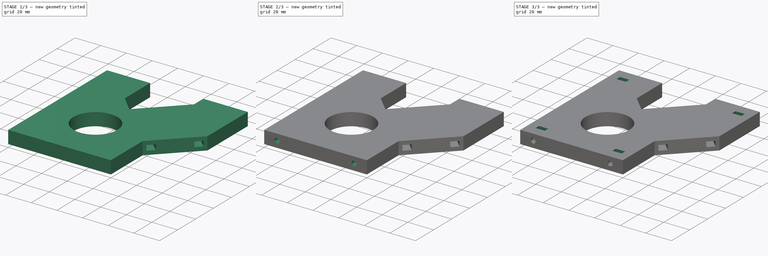
[diagram: build sequence overview — one tinted view per stage of 3, left to right]
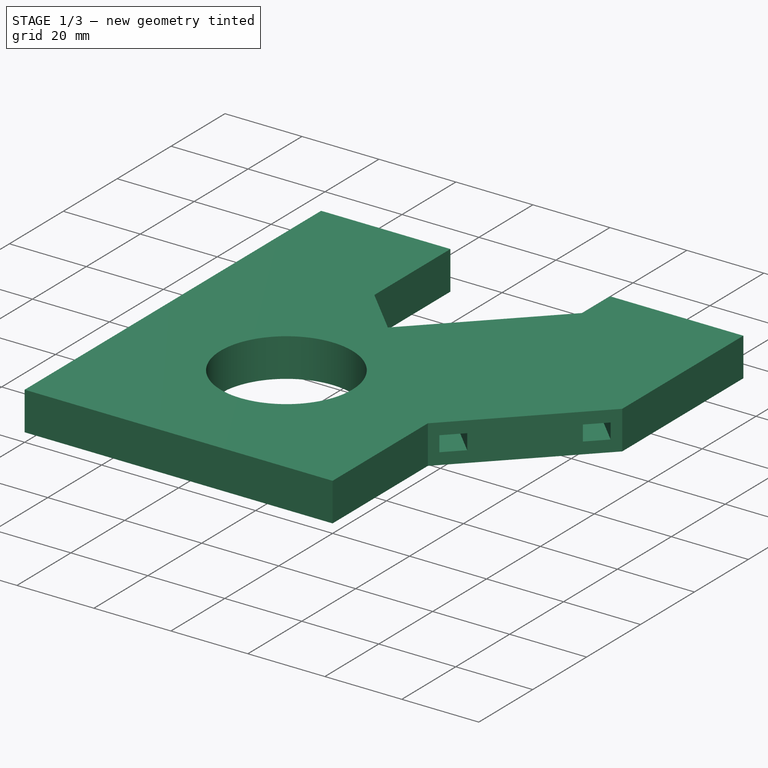
[diagram: stage 1 of 3 — iso view after this stage's code; geometry added in this stage tinted green]
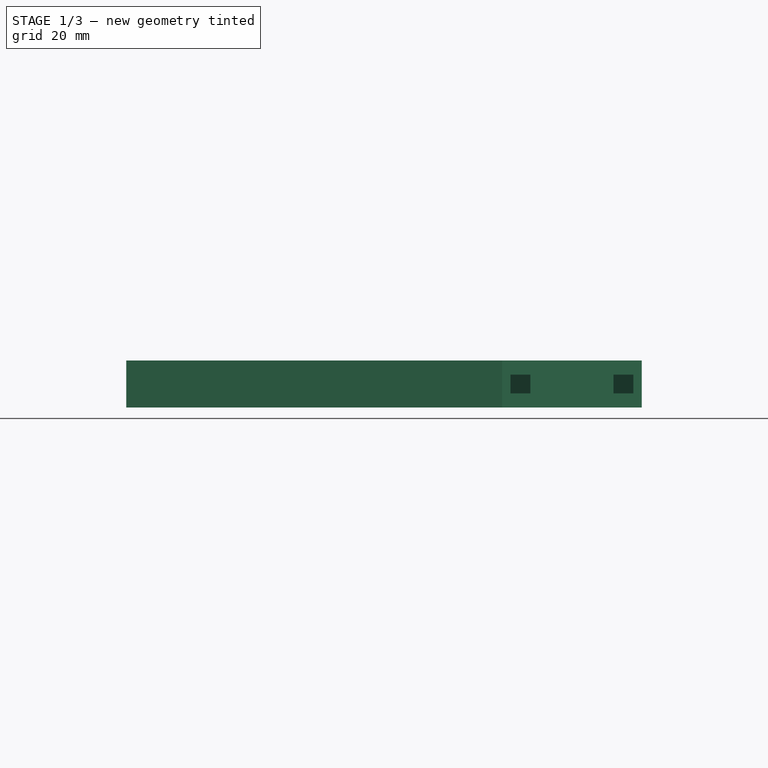
[diagram: stage 1 of 3 — front view after this stage's code; geometry added in this stage tinted green]
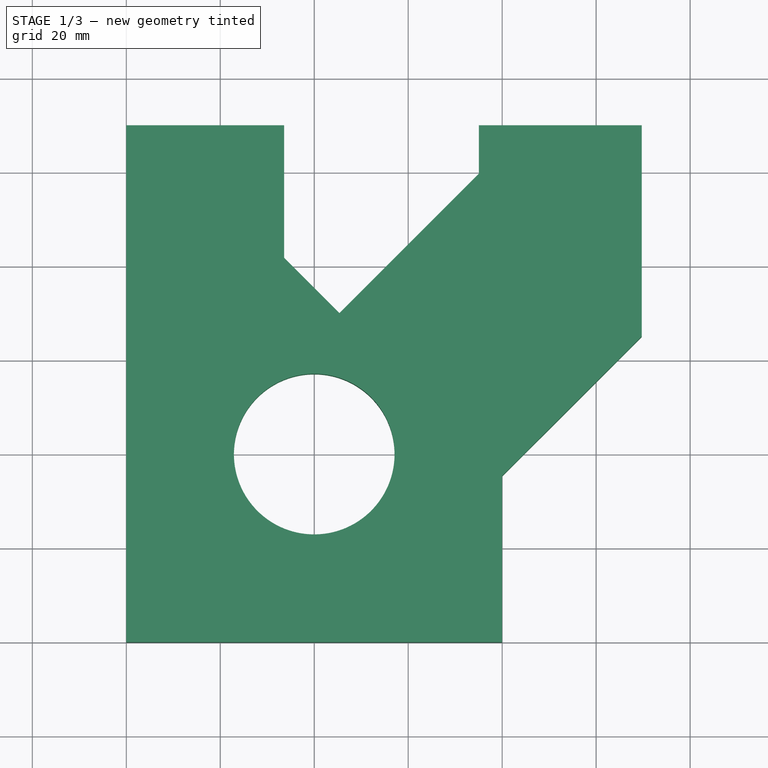
[diagram: stage 1 of 3 — top view after this stage's code; geometry added in this stage tinted green]
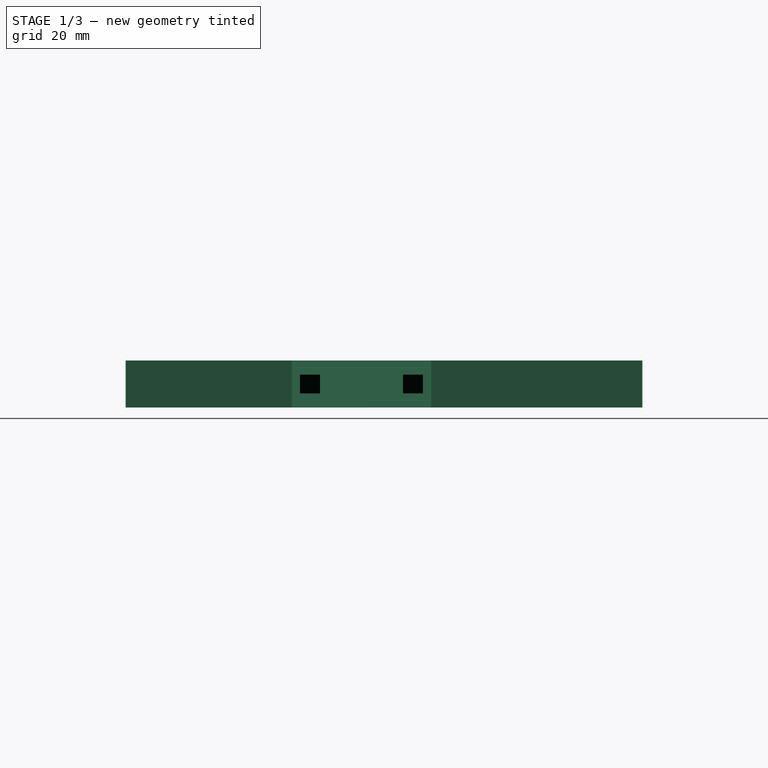
[diagram: stage 1 of 3 — right view after this stage's code; geometry added in this stage tinted green]
FCSTD DOCUMENT  (FreeCAD 0.14R3700 (Git))
Label: axis_side
License: CC-BY 3.0
LicenseURL: http://creativecommons.org/licenses/by/3.0/
objects: Sketcher::SketchObject×6, PartDesign::Pocket×5, PartDesign::Pad×1
note: 18 computed .brp shape members not serialized (recipe doc carries the construction recipe); baked Part::Feature solids carry a one-line shape summary decoded from their .brp

FEATURE [Sketcher::SketchObject] Sketch003
  sketch-geometry (24):
    g0: Circle CenterX=0 CenterY=0 CenterZ=0 NormalX=0 NormalY=0 NormalZ=1 Radius=17.1
    g1: LineSegment StartX=-40 StartY=-40 StartZ=0 EndX=-40 EndY=30 EndZ=0
    g2: LineSegment [constr] StartX=-40 StartY=30 StartZ=0 EndX=5.35534 EndY=30 EndZ=0
    g3: LineSegment StartX=5.35534 StartY=30 StartZ=0 EndX=35.0538 EndY=59.6985 EndZ=0
    g4: LineSegment [constr] StartX=35.0538 StartY=59.6985 StartZ=0 EndX=69.6985 EndY=25.0538 EndZ=0
    g5: LineSegment StartX=69.6985 StartY=25.0538 StartZ=0 EndX=40 EndY=-4.64466 EndZ=0
    g6: LineSegment StartX=40 StartY=-4.64466 StartZ=0 EndX=40 EndY=-40 EndZ=0
    g7: LineSegment StartX=40 StartY=-40 StartZ=0 EndX=-40 EndY=-40 EndZ=0
    g8: LineSegment [constr] StartX=75.3553 StartY=-40 StartZ=0 EndX=105.054 EndY=-10.3015 EndZ=0
    g9: LineSegment [constr] StartX=40 StartY=-4.64466 StartZ=0 EndX=75.3553 EndY=-40 EndZ=0
    g10: LineSegment [constr] StartX=69.6985 StartY=25.0538 StartZ=0 EndX=105.054 EndY=-10.3015 EndZ=0
    g11: Circle [constr] CenterX=0 CenterY=0 CenterZ=0 NormalX=0 NormalY=0 NormalZ=1 Radius=37
    g12: Circle [constr] CenterX=0 CenterY=0 CenterZ=0 NormalX=0 NormalY=0 NormalZ=1 Radius=39.2
    g13: LineSegment [constr] StartX=47.7782 StartY=3.13351 StartZ=0 EndX=8.32056 EndY=42.5911 EndZ=0
    g14: LineSegment [constr] StartX=8.32056 StartY=42.5911 StartZ=0 EndX=22.4627 EndY=56.7333 EndZ=0
    g15: LineSegment [constr] StartX=22.4627 StartY=56.7333 StartZ=0 EndX=61.9203 EndY=17.2756 EndZ=0
    g16: LineSegment [constr] StartX=5.35534 StartY=30 StartZ=0 EndX=40 EndY=-4.64466 EndZ=0
    g17: LineSegment StartX=-40 StartY=30 StartZ=0 EndX=-40 EndY=70 EndZ=0
    g18: LineSegment StartX=-40 StartY=70 StartZ=0 EndX=-6.40346 EndY=70 EndZ=0
    g19: LineSegment StartX=35.0538 StartY=59.6985 StartZ=0 EndX=35.0538 EndY=70 EndZ=0
    g20: LineSegment StartX=35.0538 StartY=70 StartZ=0 EndX=69.6985 EndY=70 EndZ=0
    g21: LineSegment StartX=69.6985 StartY=70 StartZ=0 EndX=69.6985 EndY=25.0538 EndZ=0
    g22: LineSegment StartX=-6.40346 StartY=70 StartZ=0 EndX=-6.40346 EndY=41.7588 EndZ=0
    g23: LineSegment StartX=-6.40346 StartY=41.7588 StartZ=0 EndX=5.35534 EndY=30 EndZ=0
  constraints (63):
    c: Coincident(g0,g-1)
    c: Vertical(g1)
    c: Coincident(g1,g2)
    c: Horizontal(g2)
    c: Coincident(g2,g3)
    c: Coincident(g3,g4)
    c: Coincident(g4,g5)
    c: Coincident(g5,g6)
    c: Vertical(g6)
    c: Coincident(g6,g7)
    c: Coincident(g7,g1)
    c: Horizontal(g7)
    c: Perpendicular(g3,g4)
    c: Perpendicular(g4,g5)
    c: Distance(g5) = 42
    c: Coincident(g9,g8)
    c: Coincident(g8,g10)
    c: Perpendicular(g10,g8)
    c: Perpendicular(g9,g8)
    c: Tangent(g10,g4)
    c: Coincident(g9,g5)
    c: DistanceY(g-1,g1) = -40
    c: Distance(g9) = 50
    c: DistanceY(g6,g8) = 0
    c: Radius(g0) = 17.1
    c: Coincident(g11,g-1)
    c: Radius(g11) = 37
    c: Coincident(g12,g-1)
    c: Radius(g12) = 39.2
    c: PointOnObject(g13,g5)
    c: Coincident(g13,g14)
    c: Coincident(g14,g15)
    c: PointOnObject(g15,g5)
    c: Perpendicular(g13,g5)
    c: Perpendicular(g14,g13)
    c: Perpendicular(g14,g15)
    c: Distance(g14) = 20
    c: Distance(g15,g4) = 11
    c: DistanceX(g-2,g5) = 40
    c: Coincident(g16,g2)
    c: Coincident(g16,g5)
    c: Perpendicular(g16,g3)
    c: Angle(g3,g2) = 2.35619
    c: DistanceY(g-1,g1) = 30
    c: DistanceX(g-2,g1) = -40
    c: Coincident(g1,g17)
    c: Coincident(g17,g18)
    c: Vertical(g17)
    c: Horizontal(g18)
    c: Coincident(g3,g19)
    c: Coincident(g19,g20)
    c: Horizontal(g20)
    c: Coincident(g20,g21)
    c: Coincident(g21,g4)
    c: Vertical(g21)
    c: Vertical(g19)
    c: Distance(g17) = 40
    c: DistanceY(g18,g19) = 0
    c: Coincident(g18,g22)
    c: Coincident(g22,g23)
    c: Coincident(g23,g2)
    c: Tangent(g23,g16)
    c: Vertical(g22)
FEATURE [PartDesign::Pad] Pad001
  Length = 10
  Length2 = 100
  Sketch = -> Sketch003
  Type = 0
FEATURE [Sketcher::SketchObject] Sketch001
  Placement = pos=(22.3223,-22.3223,0) rot=(0.862856,0.357407,0.357407;1.71777rad)
  Support = -> Pad001 [Face10]
  sketch-geometry (8):
    g0: LineSegment StartX=27.5 StartY=3 StartZ=0 EndX=33.5 EndY=3 EndZ=0
    g1: LineSegment StartX=33.5 StartY=3 StartZ=0 EndX=33.5 EndY=7 EndZ=0
    g2: LineSegment StartX=33.5 StartY=7 StartZ=0 EndX=27.5 EndY=7 EndZ=0
    g3: LineSegment StartX=27.5 StartY=7 StartZ=0 EndX=27.5 EndY=3 EndZ=0
    g4: LineSegment StartX=58.5 StartY=3 StartZ=0 EndX=64.5 EndY=3 EndZ=0
    g5: LineSegment StartX=64.5 StartY=3 StartZ=0 EndX=64.5 EndY=7 EndZ=0
    g6: LineSegment StartX=64.5 StartY=7 StartZ=0 EndX=58.5 EndY=7 EndZ=0
    g7: LineSegment StartX=58.5 StartY=7 StartZ=0 EndX=58.5 EndY=3 EndZ=0
  constraints (23):
    c: Coincident(g0,g1)
    c: Coincident(g1,g2)
    c: Coincident(g2,g3)
    c: Coincident(g3,g0)
    c: Horizontal(g0)
    c: Horizontal(g2)
    c: Vertical(g1)
    c: Vertical(g3)
    c: Coincident(g4,g5)
    c: Coincident(g5,g6)
    c: Coincident(g6,g7)
    c: Coincident(g7,g4)
    c: Horizontal(g4)
    c: Horizontal(g6)
    c: Vertical(g5)
    c: Vertical(g7)
    c: Equal(g3,g7)
    c: Distance(g3) = 4
    c: Equal(g2,g6)
    c: Distance(g2) = 6
    c: DistanceY(g0,g4) = 0
    c: Distance(g0,g4) = 31
    c: DistanceY(g-1,g4) = 3
FEATURE [PartDesign::Pocket] Pocket
  Length = 50
  Sketch = -> Sketch001
  Type = 0
  UpToFace = -> Pad001 [Face6]
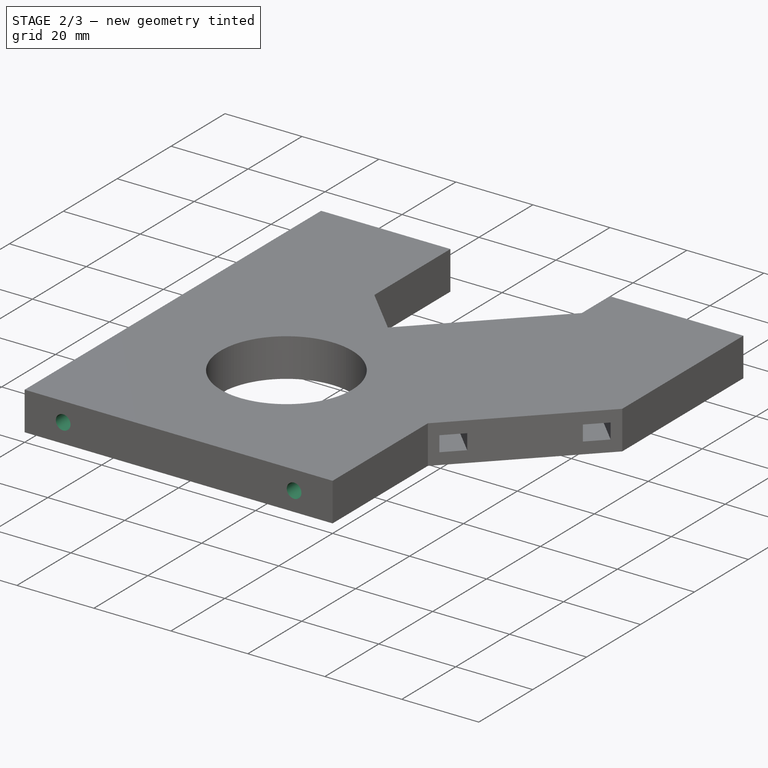
[diagram: stage 2 of 3 — iso view after this stage's code; geometry added in this stage tinted green]
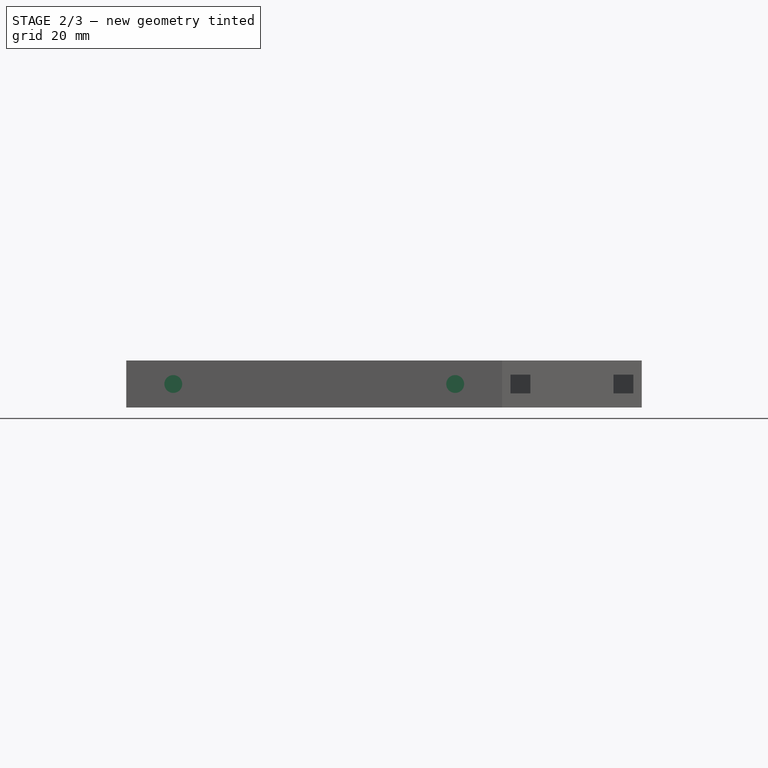
[diagram: stage 2 of 3 — front view after this stage's code; geometry added in this stage tinted green]
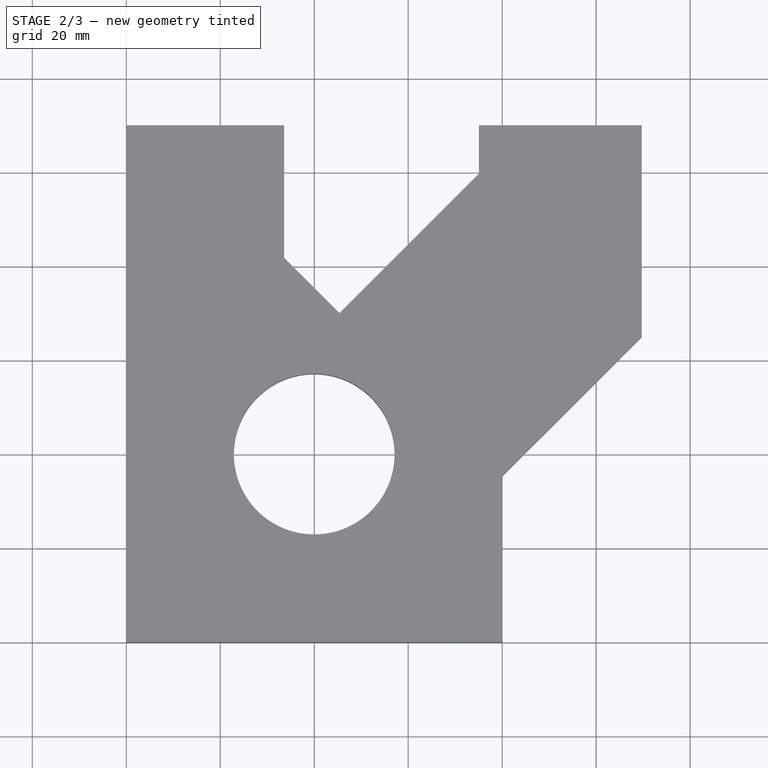
[diagram: stage 2 of 3 — top view after this stage's code; geometry added in this stage tinted green]
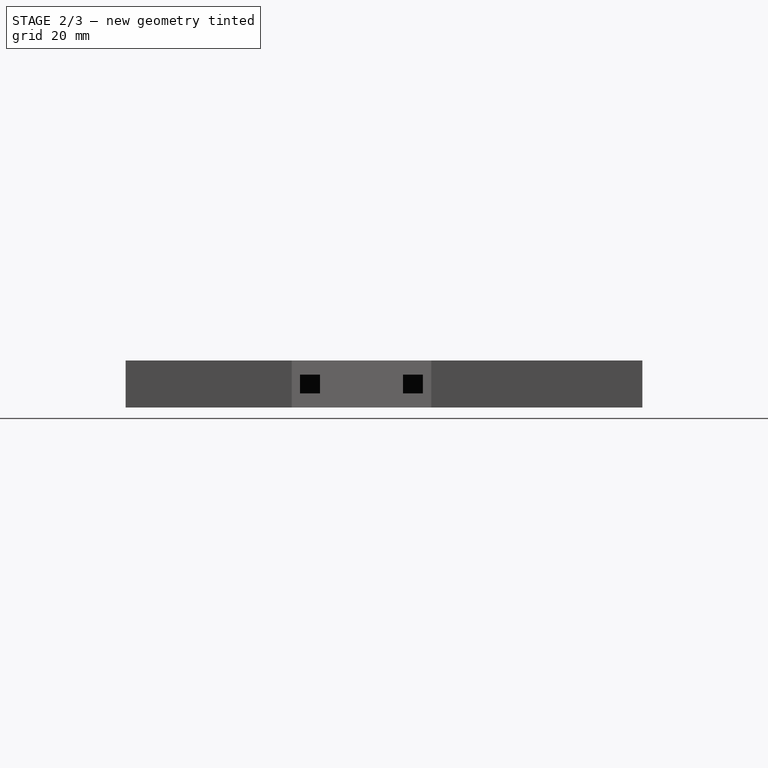
[diagram: stage 2 of 3 — right view after this stage's code; geometry added in this stage tinted green]
FEATURE [Sketcher::SketchObject] Sketch004
  Placement = pos=(0,70,0) rot=(0,0.707107,0.707107;3.14159rad)
  Support = -> Pocket [Face12]
  sketch-geometry (2):
    g0: Circle CenterX=30 CenterY=5 CenterZ=0 NormalX=0 NormalY=0 NormalZ=1 Radius=1.9
    g1: Circle CenterX=-60 CenterY=5 CenterZ=0 NormalX=0 NormalY=0 NormalZ=1 Radius=1.9
  constraints (6):
    c: Radius(g0) = 1.9
    c: DistanceX(g0) = 30
    c: DistanceY(g0) = 5
    c: Equal(g1,g0)
    c: DistanceY(g1,g0) = 0
    c: DistanceX(g-2,g1) = -60
FEATURE [PartDesign::Pocket] Pocket001
  Length = 20
  Sketch = -> Sketch004
  Type = 0
FEATURE [Sketcher::SketchObject] Sketch006
  Placement = pos=(0,-40,0) rot=(1,0,0;1.5708rad)
  Support = -> Pocket001 [Face2]
  sketch-geometry (2):
    g0: Circle CenterX=30 CenterY=5 CenterZ=0 NormalX=0 NormalY=0 NormalZ=1 Radius=1.9
    g1: Circle CenterX=-30 CenterY=5 CenterZ=0 NormalX=0 NormalY=0 NormalZ=1 Radius=1.9
  constraints (6):
    c: DistanceX(g0) = 30
    c: DistanceY(g0) = 5
    c: Radius(g0) = 1.9
    c: Equal(g1,g0)
    c: DistanceY(g1,g0) = 0
    c: DistanceX(g-2,g1) = -30
FEATURE [PartDesign::Pocket] Pocket002
  Length = 20
  Sketch = -> Sketch006
  Type = 0
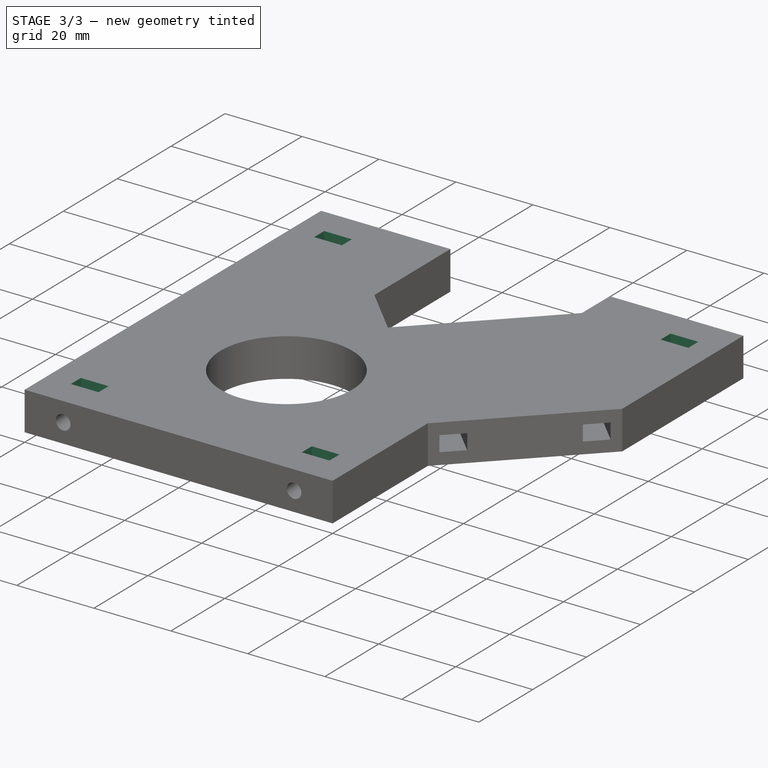
[diagram: stage 3 of 3 — iso view after this stage's code; geometry added in this stage tinted green]
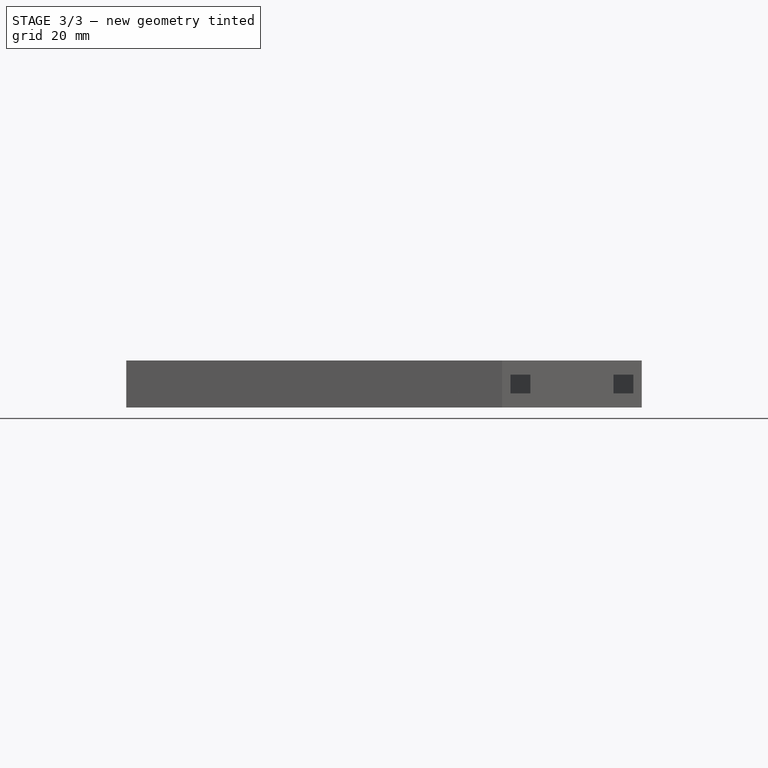
[diagram: stage 3 of 3 — front view after this stage's code; geometry added in this stage tinted green]
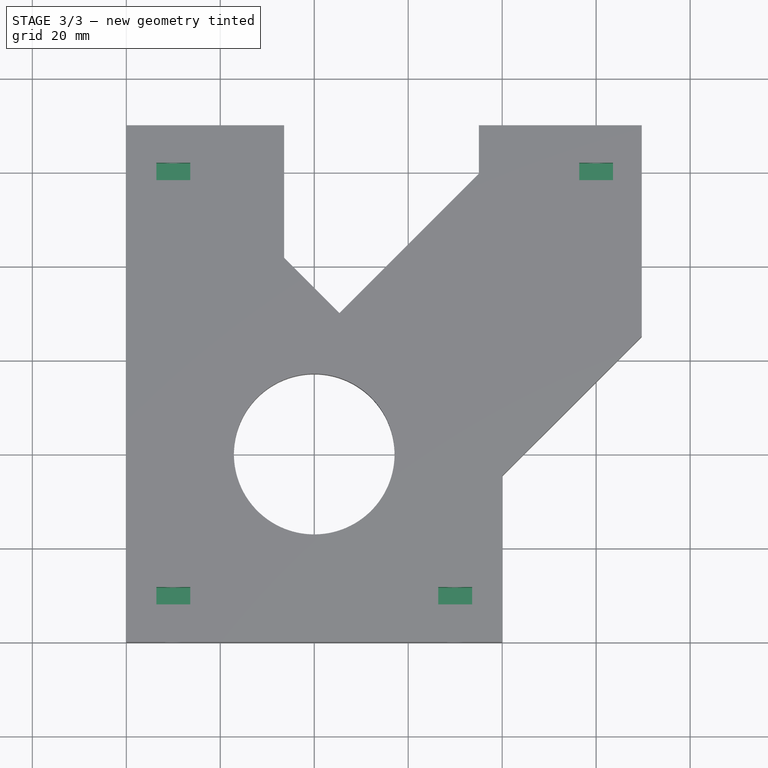
[diagram: stage 3 of 3 — top view after this stage's code; geometry added in this stage tinted green]
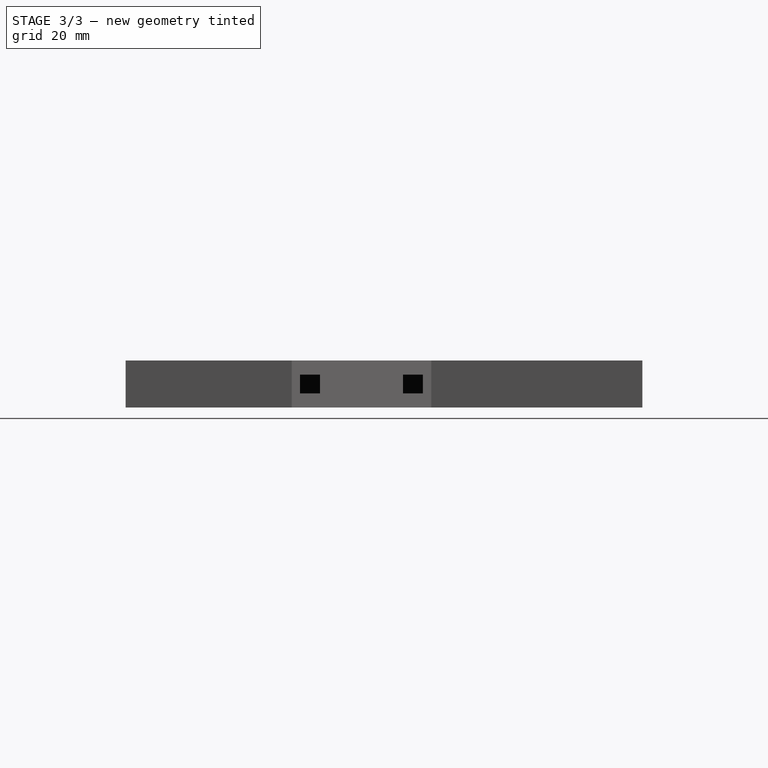
[diagram: stage 3 of 3 — right view after this stage's code; geometry added in this stage tinted green]
FEATURE [Sketcher::SketchObject] Sketch007
  Placement = pos=(-40,0,0) rot=(0.57735,-0.57735,-0.57735;2.0944rad)
  Support = -> Pocket002 [Face1]
  sketch-geometry (2):
    g0: Circle CenterX=-15.5 CenterY=5 CenterZ=0 NormalX=0 NormalY=0 NormalZ=1 Radius=1.45
    g1: Circle CenterX=15.5 CenterY=5 CenterZ=0 NormalX=0 NormalY=0 NormalZ=1 Radius=1.45
  constraints (5):
    c: Radius(g0) = 1.45
    c: Equal(g0,g1)
    c: DistanceX(g0,g1) = 31
    c: Symmetric(g1,g0,g-2)
    c: DistanceY(g-1,g0) = 5
FEATURE [PartDesign::Pocket] Pocket003
  Length = 20
  Sketch = -> Sketch007
  Type = 0
FEATURE [Sketcher::SketchObject] Sketch
  Placement = pos=(0,0,10) rot=(0,0,1;0rad)
  Support = -> Pocket003 [Face21]
  sketch-geometry (20):
    g0: LineSegment StartX=-33.6 StartY=-28.3 StartZ=0 EndX=-26.4 EndY=-28.3 EndZ=0
    g1: LineSegment StartX=-26.4 StartY=-28.3 StartZ=0 EndX=-26.4 EndY=-32 EndZ=0
    g2: LineSegment StartX=-26.4 StartY=-32 StartZ=0 EndX=-33.6 EndY=-32 EndZ=0
    g3: LineSegment StartX=-33.6 StartY=-32 StartZ=0 EndX=-33.6 EndY=-28.3 EndZ=0
    g4: LineSegment [constr] StartX=-30 StartY=-28.3 StartZ=0 EndX=-30 EndY=-32 EndZ=0
    g5: LineSegment StartX=26.4 StartY=-28.3 StartZ=0 EndX=33.6 EndY=-28.3 EndZ=0
    g6: LineSegment StartX=33.6 StartY=-28.3 StartZ=0 EndX=33.6 EndY=-32 EndZ=0
    g7: LineSegment StartX=33.6 StartY=-32 StartZ=0 EndX=26.4 EndY=-32 EndZ=0
    g8: LineSegment StartX=26.4 StartY=-32 StartZ=0 EndX=26.4 EndY=-28.3 EndZ=0
    g9: LineSegment [constr] StartX=30 StartY=-28.3 StartZ=0 EndX=30 EndY=-32 EndZ=0
    g10: LineSegment StartX=-33.6 StartY=62 StartZ=0 EndX=-26.4 EndY=62 EndZ=0
    g11: LineSegment StartX=-26.4 StartY=62 StartZ=0 EndX=-26.4 EndY=58.3 EndZ=0
    g12: LineSegment StartX=-26.4 StartY=58.3 StartZ=0 EndX=-33.6 EndY=58.3 EndZ=0
    g13: LineSegment StartX=-33.6 StartY=58.3 StartZ=0 EndX=-33.6 EndY=62 EndZ=0
    g14: LineSegment [constr] StartX=-30 StartY=62 StartZ=0 EndX=-30 EndY=58.3 EndZ=0
    g15: LineSegment StartX=56.4 StartY=62 StartZ=0 EndX=63.6 EndY=62 EndZ=0
    g16: LineSegment StartX=63.6 StartY=62 StartZ=0 EndX=63.6 EndY=58.3 EndZ=0
    g17: LineSegment StartX=63.6 StartY=58.3 StartZ=0 EndX=56.4 EndY=58.3 EndZ=0
    g18: LineSegment StartX=56.4 StartY=58.3 StartZ=0 EndX=56.4 EndY=62 EndZ=0
    g19: LineSegment [constr] StartX=60 StartY=62 StartZ=0 EndX=60 EndY=58.3 EndZ=0
  constraints (62):
    c: Coincident(g0,g1)
    c: Coincident(g1,g2)
    c: Coincident(g2,g3)
    c: Coincident(g3,g0)
    c: Horizontal(g0)
    c: Horizontal(g2)
    c: Vertical(g1)
    c: Vertical(g3)
    c: DistanceX(g0) = 7.2
    c: DistanceY(g1) = -3.7
    c: Vertical(g4)
    c: PointOnObject(g4,g0)
    c: PointOnObject(g4,g2)
    c: Symmetric(g0,g0,g4)
    c: DistanceX(g-1,g4) = -30
    c: Coincident(g5,g6)
    c: Coincident(g6,g7)
    c: Coincident(g7,g8)
    c: Coincident(g8,g5)
    c: Horizontal(g5)
    c: Horizontal(g7)
    c: Vertical(g6)
    c: Vertical(g8)
    c: Equal(g1,g8)
    c: Equal(g5,g0)
    c: Vertical(g9)
    c: PointOnObject(g9,g5)
    c: PointOnObject(g9,g7)
    c: DistanceX(g-1,g9) = 30
    c: Symmetric(g5,g5,g9)
    c: Coincident(g10,g11)
    c: Coincident(g11,g12)
    c: Coincident(g12,g13)
    c: Coincident(g13,g10)
    c: Horizontal(g10)
    c: Horizontal(g12)
    c: Vertical(g11)
    c: Vertical(g13)
    c: Equal(g0,g12)
    c: Equal(g13,g3)
    c: Vertical(g14)
    c: Symmetric(g10,g10,g14)
    c: PointOnObject(g14,g10)
    c: PointOnObject(g14,g12)
    c: DistanceX(g-1,g14) = -30
    c: DistanceY(g10,g2) = -94
    c: Coincident(g15,g16)
    c: Coincident(g16,g17)
    c: Coincident(g17,g18)
    c: Coincident(g18,g15)
    c: Horizontal(g15)
    c: Horizontal(g17)
    c: Vertical(g16)
    c: Vertical(g18)
    c: Equal(g11,g18)
    c: Equal(g17,g12)
    c: Vertical(g19)
    c: Symmetric(g15,g15,g19)
    c: PointOnObject(g19,g15)
    c: PointOnObject(g19,g17)
    c: DistanceX(g-1,g19) = 60
    c: DistanceY(g6,g15) = 94
FEATURE [PartDesign::Pocket] Pocket004
  Length = 9
  Sketch = -> Sketch
  Type = 0
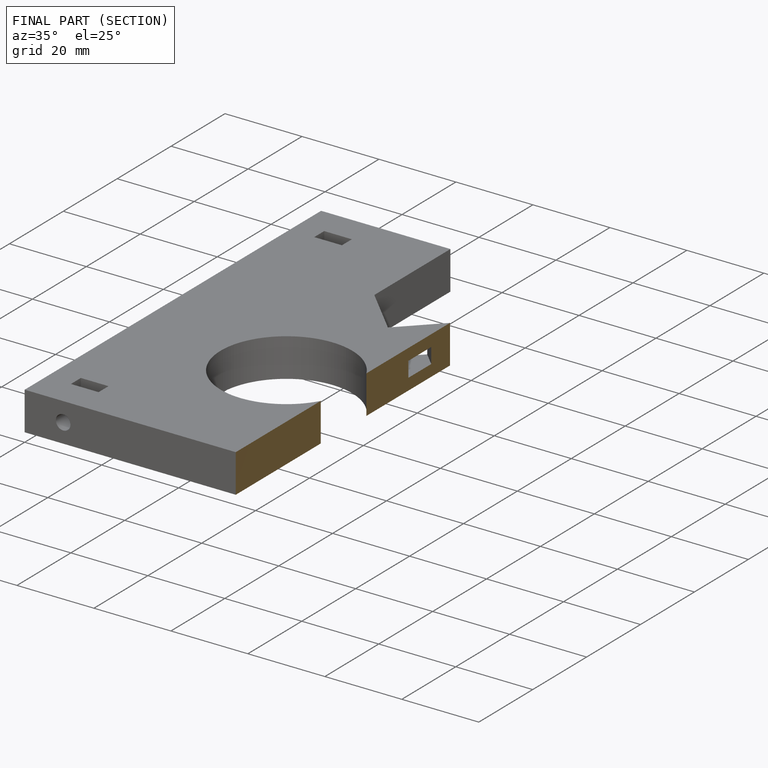
[diagram: finished part — half-section view (interior)]
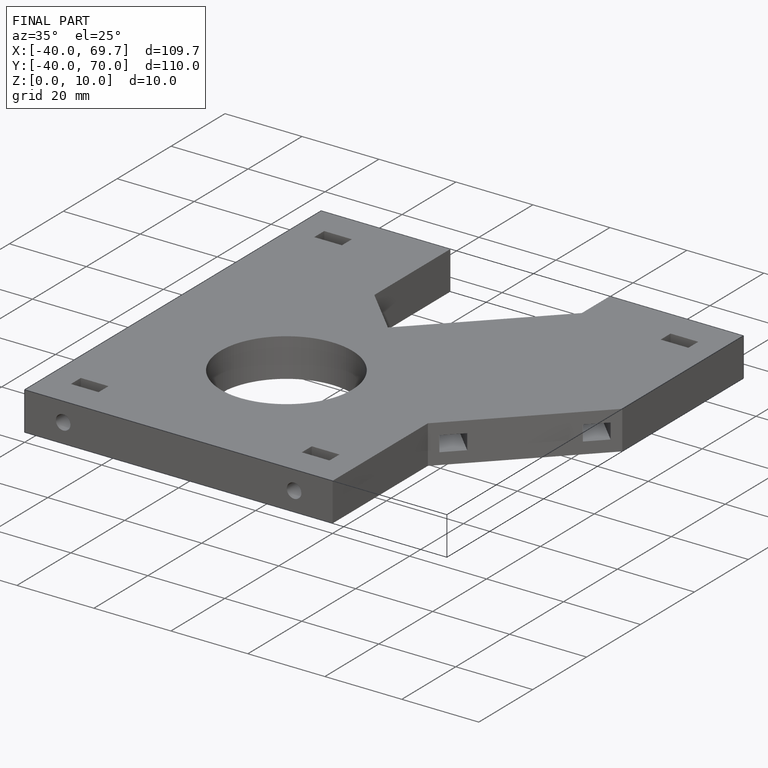
[diagram: finished part — iso view with bounding-box wireframe]
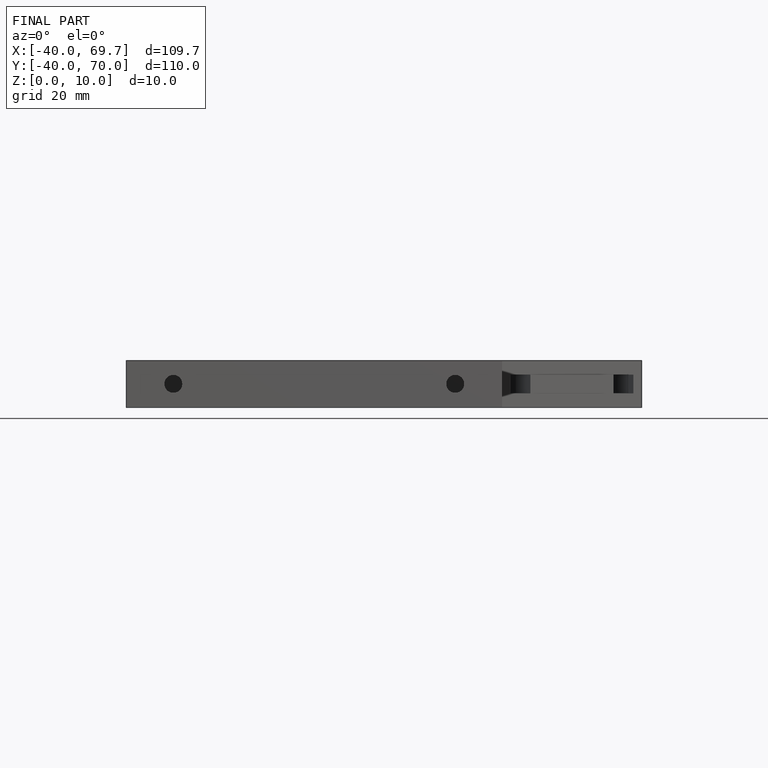
[diagram: finished part — front view with bounding-box wireframe]
